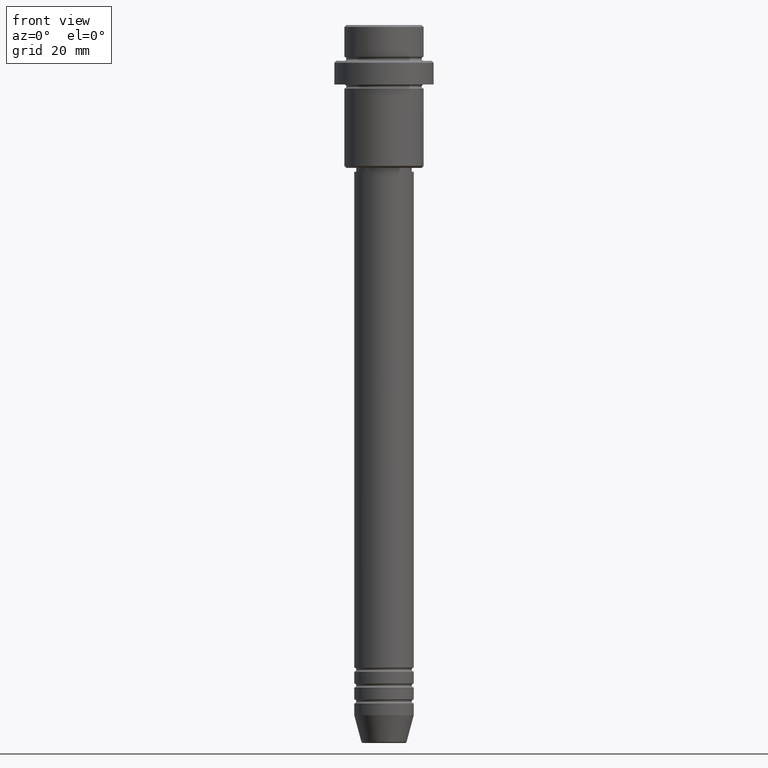
[diagram: clean part render]
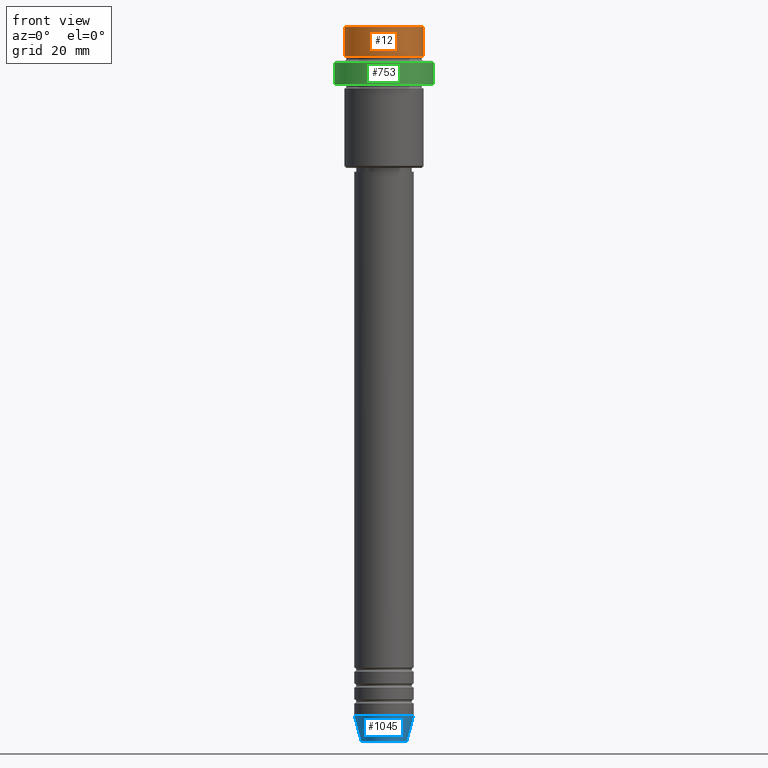
[diagram: same view with three faces highlighted in distinct colors, each labeled with its STEP entity id]
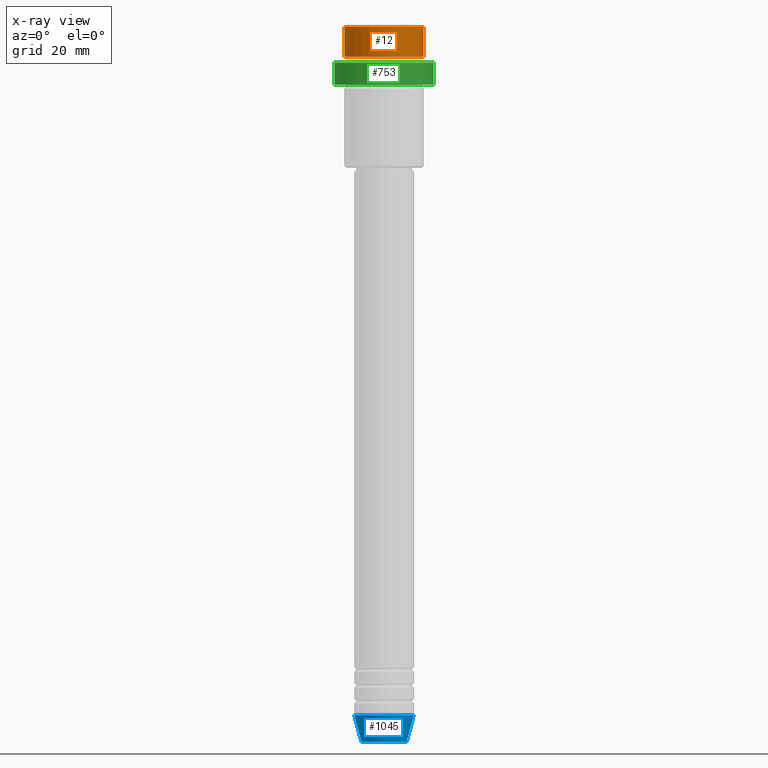
[diagram: x-ray of the same camera — body ghosted, the three highlighted faces saturated]
A machine part, front view with three faces highlighted in distinct colors.
The next image is the same camera in x-ray (body ghosted, the three faces saturated) — at least one of them is partly hidden behind the body in this view.
Their STEP definitions:

[orange] entity #12 — the highlighted cylindrical surface (partial cylindrical patch) has radius 10 mm, axis along (-0, -0, 1).
#12 = ADVANCED_FACE ( 'NONE', ( #234 ), #575, .T. ) ;
#26 = DIRECTION ( 'NONE',  ( 1.000000000000000000, 0.000000000000000000, 0.000000000000000000 ) ) ;
#30 = DIRECTION ( 'NONE',  ( -0.000000000000000000, -0.000000000000000000, 1.000000000000000000 ) ) ;
#58 = EDGE_CURVE ( 'NONE', #259, #1165, #1201, .T. ) ;
#111 = CARTESIAN_POINT ( 'NONE',  ( 9.999999999999998224, 0.000000000000000000, 0.000000000000000000 ) ) ;
#119 = DIRECTION ( 'NONE',  ( -0.000000000000000000, -0.000000000000000000, 1.000000000000000000 ) ) ;
#129 = DIRECTION ( 'NONE',  ( 0.000000000000000000, 0.000000000000000000, -1.000000000000000000 ) ) ;
#205 = DIRECTION ( 'NONE',  ( -0.000000000000000000, -0.000000000000000000, 1.000000000000000000 ) ) ;
#225 = DIRECTION ( 'NONE',  ( 1.000000000000000000, 0.000000000000000000, 0.000000000000000000 ) ) ;
#226 = DIRECTION ( 'NONE',  ( -0.000000000000000000, -0.000000000000000000, 1.000000000000000000 ) ) ;
#234 = FACE_OUTER_BOUND ( 'NONE', #1242, .T. ) ;
#259 = VERTEX_POINT ( 'NONE', #824 ) ;
#393 = CARTESIAN_POINT ( 'NONE',  ( 9.999999999999998224, 0.000000000000000000, -0.4999999999999692468 ) ) ;
#394 = EDGE_CURVE ( 'NONE', #618, #731, #859, .T. ) ;
#430 = VECTOR ( 'NONE', #119, 1000.000000000000000 ) ;
#442 = CARTESIAN_POINT ( 'NONE',  ( 0.000000000000000000, 0.000000000000000000, 0.000000000000000000 ) ) ;
#496 = CARTESIAN_POINT ( 'NONE',  ( 0.000000000000000000, 0.000000000000000000, -7.999999999999998224 ) ) ;
#519 = CIRCLE ( 'NONE', #687, 9.999999999999998224 ) ;
#520 = EDGE_CURVE ( 'NONE', #1165, #731, #869, .T. ) ;
#575 = CYLINDRICAL_SURFACE ( 'NONE', #842, 9.999999999999998224 ) ;
#618 = VERTEX_POINT ( 'NONE', #1135 ) ;
#655 = CARTESIAN_POINT ( 'NONE',  ( 0.000000000000000000, 0.000000000000000000, -0.4999999999999692468 ) ) ;
#687 = AXIS2_PLACEMENT_3D ( 'NONE', #496, #30, #808 ) ;
#713 = EDGE_CURVE ( 'NONE', #618, #259, #519, .T. ) ;
#731 = VERTEX_POINT ( 'NONE', #1358 ) ;
#752 = ORIENTED_EDGE ( 'NONE', *, *, #58, .T. ) ;
#808 = DIRECTION ( 'NONE',  ( 1.000000000000000000, 0.000000000000000000, 0.000000000000000000 ) ) ;
#824 = CARTESIAN_POINT ( 'NONE',  ( 9.999999999999998224, 0.000000000000000000, -7.999999999999998224 ) ) ;
#842 = AXIS2_PLACEMENT_3D ( 'NONE', #442, #226, #26 ) ;
#859 = LINE ( 'NONE', #948, #1096 ) ;
#869 = CIRCLE ( 'NONE', #1320, 9.999999999999998224 ) ;
#948 = CARTESIAN_POINT ( 'NONE',  ( -9.999999999999998224, 1.224646799147353059E-15, 0.000000000000000000 ) ) ;
#979 = ORIENTED_EDGE ( 'NONE', *, *, #394, .F. ) ;
#1096 = VECTOR ( 'NONE', #205, 1000.000000000000000 ) ;
#1135 = CARTESIAN_POINT ( 'NONE',  ( -9.999999999999998224, 1.224646799147353059E-15, -7.999999999999998224 ) ) ;
#1165 = VERTEX_POINT ( 'NONE', #393 ) ;
#1201 = LINE ( 'NONE', #111, #430 ) ;
#1242 = EDGE_LOOP ( 'NONE', ( #979, #1349, #752, #1388 ) ) ;
#1320 = AXIS2_PLACEMENT_3D ( 'NONE', #655, #129, #225 ) ;
#1349 = ORIENTED_EDGE ( 'NONE', *, *, #713, .T. ) ;
#1358 = CARTESIAN_POINT ( 'NONE',  ( -9.999999999999998224, 1.224646799147353059E-15, -0.4999999999999692468 ) ) ;
#1388 = ORIENTED_EDGE ( 'NONE', *, *, #520, .T. ) ;

[blue] entity #1045 — the highlighted conical surface has half-angle 15 deg.
#8 = DIRECTION ( 'NONE',  ( 1.000000000000000000, 0.000000000000000000, 0.000000000000000000 ) ) ;
#38 = CIRCLE ( 'NONE', #1029, 7.500000000000000000 ) ;
#57 = VERTEX_POINT ( 'NONE', #773 ) ;
#72 = ORIENTED_EDGE ( 'NONE', *, *, #599, .F. ) ;
#102 = CARTESIAN_POINT ( 'NONE',  ( 0.000000000000000000, 0.000000000000000000, -180.6294095225512422 ) ) ;
#139 = DIRECTION ( 'NONE',  ( -0.2588190451025213501, 3.169619151431772337E-17, 0.9659258262890680902 ) ) ;
#164 = ORIENTED_EDGE ( 'NONE', *, *, #630, .F. ) ;
#195 = CARTESIAN_POINT ( 'NONE',  ( 7.500000000000000000, 0.000000000000000000, -174.0000000000000000 ) ) ;
#199 = EDGE_LOOP ( 'NONE', ( #164, #886, #1241, #72 ) ) ;
#243 = DIRECTION ( 'NONE',  ( -0.000000000000000000, -0.000000000000000000, 1.000000000000000000 ) ) ;
#277 = AXIS2_PLACEMENT_3D ( 'NONE', #102, #243, #8 ) ;
#323 = VECTOR ( 'NONE', #139, 1000.000000000000000 ) ;
#376 = VERTEX_POINT ( 'NONE', #1390 ) ;
#440 = CARTESIAN_POINT ( 'NONE',  ( -7.500000000000000000, 9.184850993605147944E-16, -174.0000000000000000 ) ) ;
#466 = DIRECTION ( 'NONE',  ( -0.000000000000000000, -0.000000000000000000, 1.000000000000000000 ) ) ;
#486 = LINE ( 'NONE', #923, #323 ) ;
#528 = EDGE_CURVE ( 'NONE', #376, #1260, #915, .T. ) ;
#572 = DIRECTION ( 'NONE',  ( 1.000000000000000000, 0.000000000000000000, 0.000000000000000000 ) ) ;
#581 = DIRECTION ( 'NONE',  ( -0.000000000000000000, -0.000000000000000000, 1.000000000000000000 ) ) ;
#599 = EDGE_CURVE ( 'NONE', #981, #57, #38, .T. ) ;
#600 = FACE_OUTER_BOUND ( 'NONE', #199, .T. ) ;
#630 = EDGE_CURVE ( 'NONE', #376, #981, #486, .T. ) ;
#708 = CARTESIAN_POINT ( 'NONE',  ( 0.000000000000000000, 0.000000000000000000, -174.0000000000000000 ) ) ;
#744 = LINE ( 'NONE', #195, #1101 ) ;
#773 = CARTESIAN_POINT ( 'NONE',  ( 7.500000000000000000, 0.000000000000000000, -174.0000000000000000 ) ) ;
#855 = EDGE_CURVE ( 'NONE', #1260, #57, #744, .T. ) ;
#886 = ORIENTED_EDGE ( 'NONE', *, *, #528, .T. ) ;
#915 = CIRCLE ( 'NONE', #277, 5.723655072137191269 ) ;
#917 = CONICAL_SURFACE ( 'NONE', #1256, 7.500000000000000000, 0.2617993877991500740 ) ;
#923 = CARTESIAN_POINT ( 'NONE',  ( -7.500000000000000000, 9.184850993605147944E-16, -174.0000000000000000 ) ) ;
#932 = CARTESIAN_POINT ( 'NONE',  ( 5.723655072137191269, 0.000000000000000000, -180.6294095225512422 ) ) ;
#965 = DIRECTION ( 'NONE',  ( 0.2588190451025213501, 0.000000000000000000, 0.9659258262890680902 ) ) ;
#981 = VERTEX_POINT ( 'NONE', #440 ) ;
#1029 = AXIS2_PLACEMENT_3D ( 'NONE', #1141, #581, #1129 ) ;
#1045 = ADVANCED_FACE ( 'NONE', ( #600 ), #917, .T. ) ;
#1101 = VECTOR ( 'NONE', #965, 1000.000000000000000 ) ;
#1129 = DIRECTION ( 'NONE',  ( 1.000000000000000000, 0.000000000000000000, 0.000000000000000000 ) ) ;
#1141 = CARTESIAN_POINT ( 'NONE',  ( 0.000000000000000000, 0.000000000000000000, -174.0000000000000000 ) ) ;
#1241 = ORIENTED_EDGE ( 'NONE', *, *, #855, .T. ) ;
#1256 = AXIS2_PLACEMENT_3D ( 'NONE', #708, #466, #572 ) ;
#1260 = VERTEX_POINT ( 'NONE', #932 ) ;
#1390 = CARTESIAN_POINT ( 'NONE',  ( -5.723655072137191269, 8.097153428560735915E-16, -180.6294095225512422 ) ) ;

[green] entity #753 — the highlighted cylindrical surface (partial cylindrical patch) has radius 12.5 mm, axis along (-0, -0, 1).
#59 = DIRECTION ( 'NONE',  ( 1.000000000000000000, 0.000000000000000000, 0.000000000000000000 ) ) ;
#166 = DIRECTION ( 'NONE',  ( -0.000000000000000000, -0.000000000000000000, 1.000000000000000000 ) ) ;
#174 = DIRECTION ( 'NONE',  ( 1.000000000000000000, 0.000000000000000000, 0.000000000000000000 ) ) ;
#182 = AXIS2_PLACEMENT_3D ( 'NONE', #1281, #627, #1175 ) ;
#202 = CARTESIAN_POINT ( 'NONE',  ( 0.000000000000000000, 0.000000000000000000, -15.00000000000000000 ) ) ;
#214 = CARTESIAN_POINT ( 'NONE',  ( 12.50000000000000000, 0.000000000000000000, -15.00000000000000000 ) ) ;
#257 = LINE ( 'NONE', #491, #714 ) ;
#279 = AXIS2_PLACEMENT_3D ( 'NONE', #1154, #1387, #174 ) ;
#331 = CARTESIAN_POINT ( 'NONE',  ( -12.50000000000000000, 1.530808498934191521E-15, -15.00000000000000000 ) ) ;
#360 = LINE ( 'NONE', #1138, #1365 ) ;
#482 = VERTEX_POINT ( 'NONE', #331 ) ;
#488 = ORIENTED_EDGE ( 'NONE', *, *, #914, .T. ) ;
#491 = CARTESIAN_POINT ( 'NONE',  ( 12.50000000000000000, 0.000000000000000000, 0.000000000000000000 ) ) ;
#625 = ORIENTED_EDGE ( 'NONE', *, *, #728, .T. ) ;
#627 = DIRECTION ( 'NONE',  ( -0.000000000000000000, -0.000000000000000000, 1.000000000000000000 ) ) ;
#634 = DIRECTION ( 'NONE',  ( -0.000000000000000000, -0.000000000000000000, 1.000000000000000000 ) ) ;
#670 = VERTEX_POINT ( 'NONE', #831 ) ;
#690 = AXIS2_PLACEMENT_3D ( 'NONE', #202, #634, #59 ) ;
#696 = DIRECTION ( 'NONE',  ( -0.000000000000000000, -0.000000000000000000, 1.000000000000000000 ) ) ;
#714 = VECTOR ( 'NONE', #696, 1000.000000000000000 ) ;
#728 = EDGE_CURVE ( 'NONE', #990, #670, #257, .T. ) ;
#753 = ADVANCED_FACE ( 'NONE', ( #1371 ), #953, .T. ) ;
#780 = CIRCLE ( 'NONE', #690, 12.50000000000000000 ) ;
#804 = CIRCLE ( 'NONE', #279, 12.50000000000000000 ) ;
#811 = ORIENTED_EDGE ( 'NONE', *, *, #1219, .T. ) ;
#831 = CARTESIAN_POINT ( 'NONE',  ( 12.50000000000000000, 0.000000000000000000, -9.499999999999976907 ) ) ;
#857 = CARTESIAN_POINT ( 'NONE',  ( -12.50000000000000000, 1.530808498934191521E-15, -9.499999999999976907 ) ) ;
#875 = VERTEX_POINT ( 'NONE', #857 ) ;
#914 = EDGE_CURVE ( 'NONE', #670, #875, #804, .T. ) ;
#953 = CYLINDRICAL_SURFACE ( 'NONE', #182, 12.50000000000000000 ) ;
#990 = VERTEX_POINT ( 'NONE', #214 ) ;
#1065 = EDGE_CURVE ( 'NONE', #482, #875, #360, .T. ) ;
#1138 = CARTESIAN_POINT ( 'NONE',  ( -12.50000000000000000, 1.530808498934191521E-15, 0.000000000000000000 ) ) ;
#1154 = CARTESIAN_POINT ( 'NONE',  ( 0.000000000000000000, 0.000000000000000000, -9.499999999999976907 ) ) ;
#1175 = DIRECTION ( 'NONE',  ( 1.000000000000000000, 0.000000000000000000, 0.000000000000000000 ) ) ;
#1192 = ORIENTED_EDGE ( 'NONE', *, *, #1065, .F. ) ;
#1210 = EDGE_LOOP ( 'NONE', ( #1192, #811, #625, #488 ) ) ;
#1219 = EDGE_CURVE ( 'NONE', #482, #990, #780, .T. ) ;
#1281 = CARTESIAN_POINT ( 'NONE',  ( 0.000000000000000000, 0.000000000000000000, 0.000000000000000000 ) ) ;
#1365 = VECTOR ( 'NONE', #166, 1000.000000000000000 ) ;
#1371 = FACE_OUTER_BOUND ( 'NONE', #1210, .T. ) ;
#1387 = DIRECTION ( 'NONE',  ( 0.000000000000000000, 0.000000000000000000, -1.000000000000000000 ) ) ;